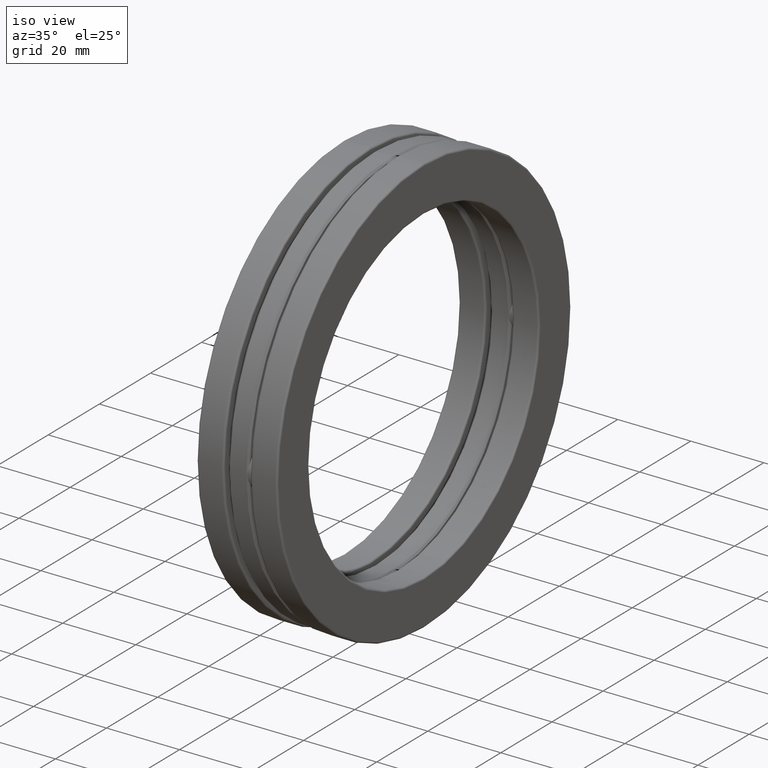
[diagram: clean part render]
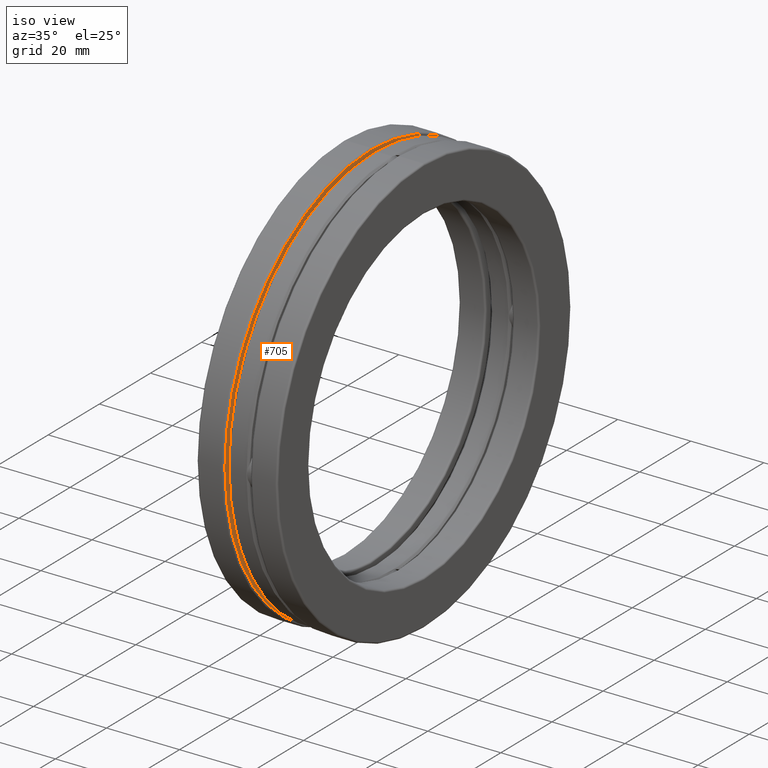
[diagram: same view with one face highlighted and labeled with its STEP entity id]
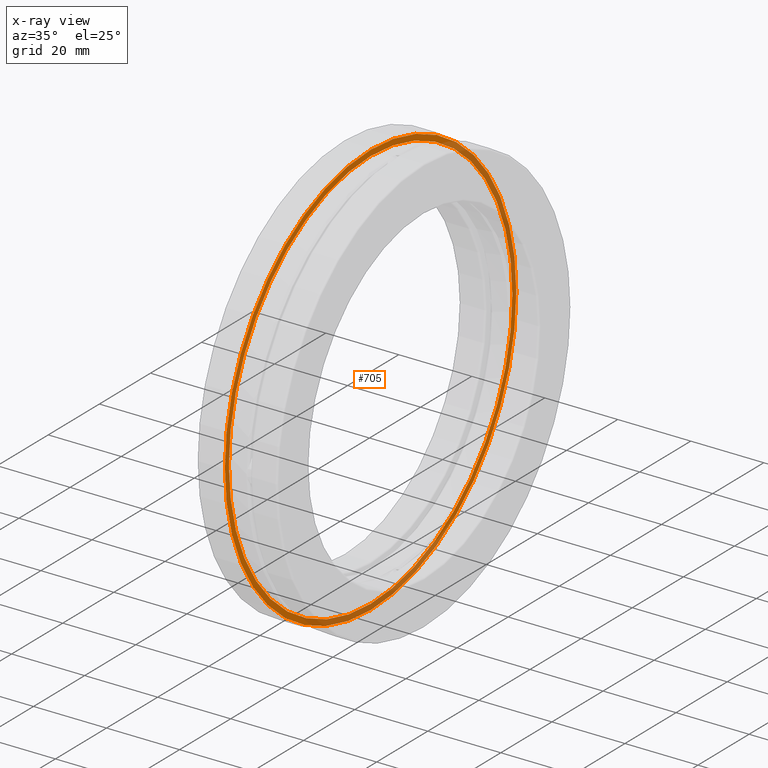
[diagram: x-ray of the same camera — body ghosted, the highlighted face saturated]
A machine part, iso view. The second image highlights one B-rep face of the part: STEP entity #705.
The next image is the same camera in x-ray: the body ghosted, the highlighted face saturated — about 32% of this face is hidden behind the body in this view.
In plain terms, the highlighted planar face has unit normal (1, 0, 0).
Its self-contained STEP definition (entity closure, byte-faithful):
#97 = AXIS2_PLACEMENT_3D ( 'NONE', #1069, #468, #459 ) ;
#110 = CARTESIAN_POINT ( 'NONE',  ( -0.1443362199999997700, 0.0000000000000000000, 0.0000000000000000000 ) ) ;
#209 = PLANE ( 'NONE',  #432 ) ;
#218 = ORIENTED_EDGE ( 'NONE', *, *, #272, .F. ) ;
#247 = CARTESIAN_POINT ( 'NONE',  ( -0.1443362199999997700, 0.0000000000000000000, 2.243999999999999800 ) ) ;
#272 = EDGE_CURVE ( 'NONE', #590, #590, #955, .T. ) ;
#307 = DIRECTION ( 'NONE',  ( 1.000000000000000000, 0.0000000000000000000, 0.0000000000000000000 ) ) ;
#321 = AXIS2_PLACEMENT_3D ( 'NONE', #535, #347, #728 ) ;
#347 = DIRECTION ( 'NONE',  ( -1.000000000000000000, -0.0000000000000000000, -0.0000000000000000000 ) ) ;
#352 = FACE_BOUND ( 'NONE', #702, .T. ) ;
#394 = ORIENTED_EDGE ( 'NONE', *, *, #774, .T. ) ;
#432 = AXIS2_PLACEMENT_3D ( 'NONE', #110, #307, #1003 ) ;
#436 = CARTESIAN_POINT ( 'NONE',  ( -0.1443362199999997700, 0.0000000000000000000, 2.182455967093216700 ) ) ;
#459 = DIRECTION ( 'NONE',  ( 0.0000000000000000000, 0.0000000000000000000, 1.000000000000000000 ) ) ;
#468 = DIRECTION ( 'NONE',  ( -1.000000000000000000, -0.0000000000000000000, -0.0000000000000000000 ) ) ;
#528 = CIRCLE ( 'NONE', #321, 2.182455967093216700 ) ;
#535 = CARTESIAN_POINT ( 'NONE',  ( -0.1443362199999997700, 0.0000000000000000000, 0.0000000000000000000 ) ) ;
#590 = VERTEX_POINT ( 'NONE', #247 ) ;
#702 = EDGE_LOOP ( 'NONE', ( #394 ) ) ;
#705 = ADVANCED_FACE ( 'NONE', ( #352, #1192 ), #209, .T. ) ;
#724 = VERTEX_POINT ( 'NONE', #436 ) ;
#728 = DIRECTION ( 'NONE',  ( 0.0000000000000000000, 0.0000000000000000000, 1.000000000000000000 ) ) ;
#774 = EDGE_CURVE ( 'NONE', #724, #724, #528, .T. ) ;
#955 = CIRCLE ( 'NONE', #97, 2.243999999999999800 ) ;
#1003 = DIRECTION ( 'NONE',  ( 0.0000000000000000000, 0.0000000000000000000, -1.000000000000000000 ) ) ;
#1069 = CARTESIAN_POINT ( 'NONE',  ( -0.1443362199999997700, 0.0000000000000000000, 0.0000000000000000000 ) ) ;
#1192 = FACE_OUTER_BOUND ( 'NONE', #1229, .T. ) ;
#1229 = EDGE_LOOP ( 'NONE', ( #218 ) ) ;